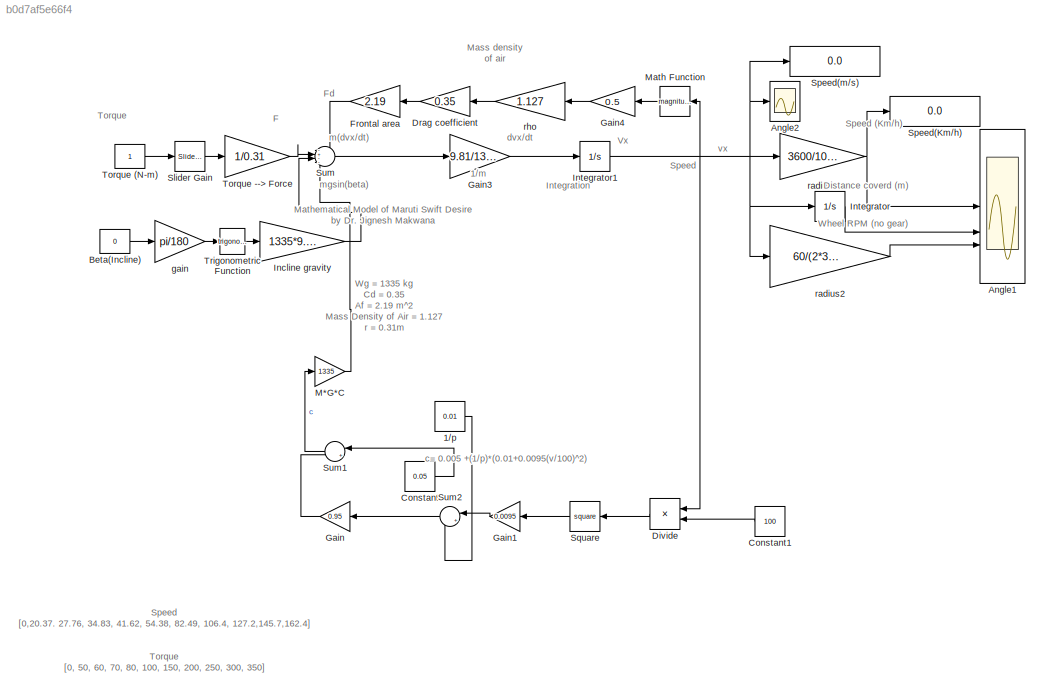
MODEL slx_b0d7af5e66f4
KIND model
CONFIG AbsTol = auto
CONFIG EnableMultiTasking = on
CONFIG FixedStep = auto
CONFIG MaxStep = auto
CONFIG MinStep = auto
CONFIG RelTol = 1e-3
CONFIG SampleTimeConstraint = Unconstrained
CONFIG SolverName = ode45
CONFIG StartTime = 0.0
CONFIG StopTime = 10
BLOCK [Constant] 1//p
  Value = 0.01
BLOCK [Scope] Angle1
  Floating = off
  NumInputPorts = 3
  ScopeSpecificationString = Simulink.scopes.TimeScopeBlockCfg('CurrentConfiguration', extmgr.ConfigurationSet(extmgr.Configuration('Core','General UI',true),extmgr.Configuration('Core','Source UI',true),extmgr.Configuration('Sources','WiredSimulink',true,'DataLoggingVariableName','ScopeData1','DataLoggingSaveFormat','StructureWithTime','DataLoggingMaxPoints','50000','DataLoggingDecimation','20','DataLoggingDecimateData',true...<+3142ch>
BLOCK [Scope] Angle2
  Floating = off
  NumInputPorts = 1
  ScopeSpecificationString = C++SS(StrPVP('Location','[10, 60, 1930, 1051]'),StrPVP('Open','off'),StrPVP('ZoomMode','xonly'),MxPVP('AxesTitles',54,'struct(''axes1'',''Speed(m/s)'')'),MxPVP('ScopeGraphics',57,'struct(''FigureColor'',''[0.5 0.5 0.5]'',''AxesColor'',''[0 0 0]'',''AxesTickColor'',''[1 1 1]'',''LineColors'',''[1 1 0;1 0 1;0 1 1;1 0 0;0 1 0;0 0 1]'',''LineStyles'',''-|-|-|-|-|-'',''LineWidths'',''[0.5 0.5 0.5 0.5 0...<+395ch>
BLOCK [Constant] Beta(Incline)
  Value = 0
BLOCK [Constant] Constant
  Value = 0.05
BLOCK [Constant] Constant1
  NameLocation = top
  Value = 100
BLOCK [Product] Divide
  Inputs = */
  NameLocation = top
BLOCK [Gain] Drag coefficient
  Gain = 0.35
  NameLocation = top
BLOCK [Gain] Frontal area
  Gain = 2.19
  NameLocation = top
BLOCK [Gain] Gain
  Gain = 0.95
  NameLocation = top
BLOCK [Gain] Gain1
  Gain = 0.0095
  NameLocation = top
BLOCK [Gain] Gain3
  Gain = 9.81/1335
BLOCK [Gain] Gain4
  Gain = 0.5
BLOCK [Gain] Incline gravity
  Gain = 1335*9.81
BLOCK [Integrator] Integrator
BLOCK [Integrator] Integrator1
BLOCK [Gain] M*G*C
  Gain = 1335
BLOCK [Math] Math Function
  NameLocation = top
  Operator = magnitude^2
  SignedPower = on
BLOCK [Reference] Slider Gain  REF=simulink/Math
Operations/Slider
Gain
  SourceBlock = simulink/Math\nOperations/Slider\nGain
  SourceType = Slider Gain
BLOCK [Display] Speed(Km//h)
  Decimation = 1
BLOCK [Display] Speed(m//s)
  Decimation = 1
BLOCK [Math] Square
  NameLocation = top
  Operator = square
BLOCK [Sum] Sum
  Inputs = -+--
BLOCK [Sum] Sum1
  Inputs = |++
  NameLocation = top
BLOCK [Sum] Sum2
  Inputs = |++
  NameLocation = top
BLOCK [Constant] Torque (N-m)
BLOCK [Gain] Torque --> Force
  Gain = 1/0.31
BLOCK [Trigonometry] Trigonometric Function
BLOCK [Gain] gain
  Gain = pi/180
BLOCK [Gain] radius1
  Gain = 3600/1000
  NameLocation = top
BLOCK [Gain] radius2
  Gain = 60/(2*3.14*0.279)
BLOCK [Gain] rho
  Gain = 1.127
  NameLocation = top
ANNOTATION (root): 1/m
ANNOTATION (root): Mathematical Model of Maruti Swift Desire by Dr. Jignesh Makwana
ANNOTATION (root): dv x /dt
ANNOTATION (root): m(dv x /dt)
ANNOTATION (root): v x
ANNOTATION (root): F
ANNOTATION (root): Fd
ANNOTATION (root): mgsin(beta)
ANNOTATION (root): Wg = 1335 kg Cd = 0.35 Af = 2.19 m^2 Mass Density of Air = 1.127 r = 0.31m
ANNOTATION (root): Distance coverd (m)
ANNOTATION (root): Integration
ANNOTATION (root): Mass density of air
ANNOTATION (root): Speed
ANNOTATION (root): Speed [0,20.37. 27.76, 34.83, 41.62, 54.38, 82.49, 106.4, 127.2,145.7,162.4] Torque [0, 50, 60, 70, 80, 100, 150, 200, 250, 300, 350]
ANNOTATION (root): Speed (Km/h)
ANNOTATION (root): Torque
ANNOTATION (root): Vx
ANNOTATION (root): Wheel RPM (no gear)
ANNOTATION (root): c= 0.005 +(1/p)*(0.01+0.0095(v/100)^2)
LINE 1//p:1 -> Sum2:2
LINE Beta(Incline):1 -> gain:1
LINE Constant1:1 -> Divide:2
LINE Constant:1 -> Sum1:1
LINE Divide:1 -> Square:1
LINE Drag coefficient:1 -> Frontal area:1
LINE Frontal area:1 -> Sum:1
LINE Gain1:1 -> Sum2:1
LINE Gain3:1 -> Integrator1:1
LINE Gain4:1 -> rho:1
LINE Gain:1 -> Sum1:2
LINE Incline gravity:1 -> Sum:3
NET Integrator1:1 -> Angle2:1, Divide:1, Integrator:1, Math Function:1, Speed(m//s):1, radius1:1, radius2:1
LINE Integrator:1 -> Angle1:2
LINE M*G*C:1 -> Sum:4
LINE Math Function:1 -> Gain4:1
LINE Slider Gain:1 -> Torque --> Force:1
LINE Square:1 -> Gain1:1
LINE Sum1:1 -> M*G*C:1
LINE Sum2:1 -> Gain:1
LINE Sum:1 -> Gain3:1
LINE Torque (N-m):1 -> Slider Gain:1
LINE Torque --> Force:1 -> Sum:2
LINE Trigonometric Function:1 -> Incline gravity:1
LINE gain:1 -> Trigonometric Function:1
NET radius1:1 -> Angle1:1, Speed(Km//h):1
LINE radius2:1 -> Angle1:3
LINE rho:1 -> Drag coefficient:1
note: NET lines group one-source signal fan-out (src -> all destinations, sorted); 1:1 wires keep LINE
